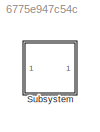
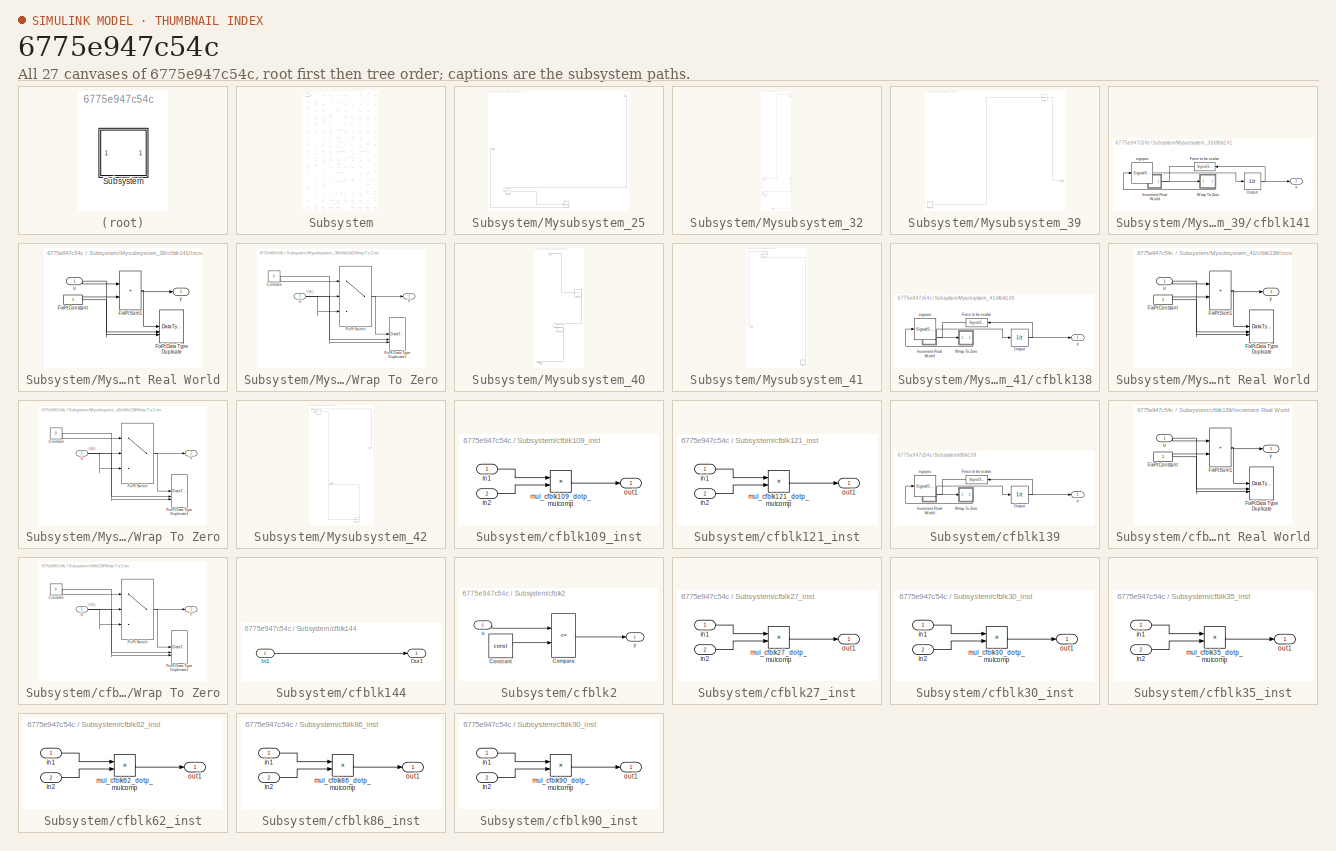
[diagram: thumbnail index - all 27 canvases of the model, root first then tree order]
MODEL slx_6775e947c54c
KIND model
CONFIG AbsTol = auto
CONFIG EnableMultiTasking = off
CONFIG FixedStep = auto
CONFIG MaxStep = auto
CONFIG MinStep = auto
CONFIG RelTol = 1e-3
CONFIG SampleTimeConstraint = Unconstrained
CONFIG SolverName = VariableStepAuto
CONFIG StartTime = 0.0
CONFIG StopTime = 10.0
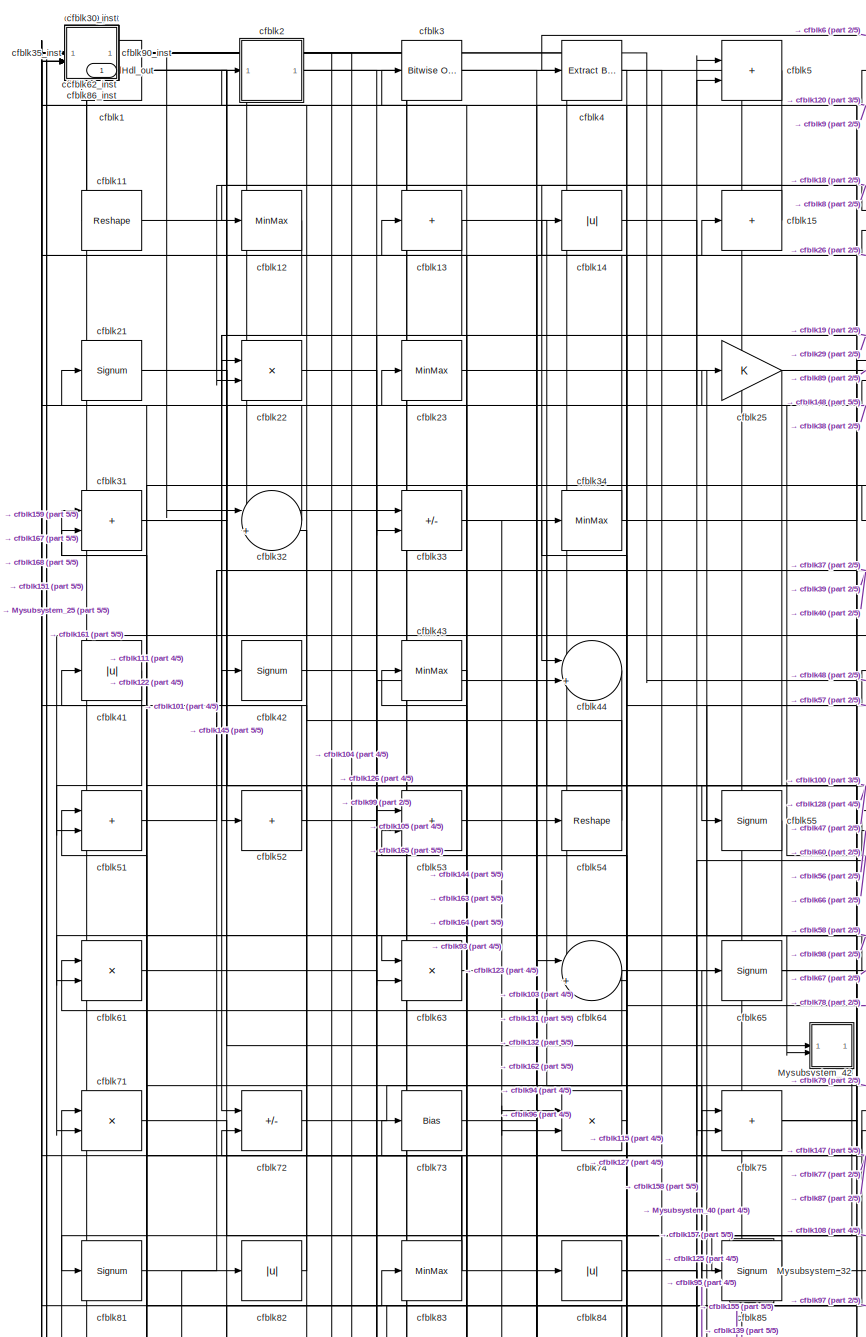
[diagram: Subsystem - part 1/5, top left region]
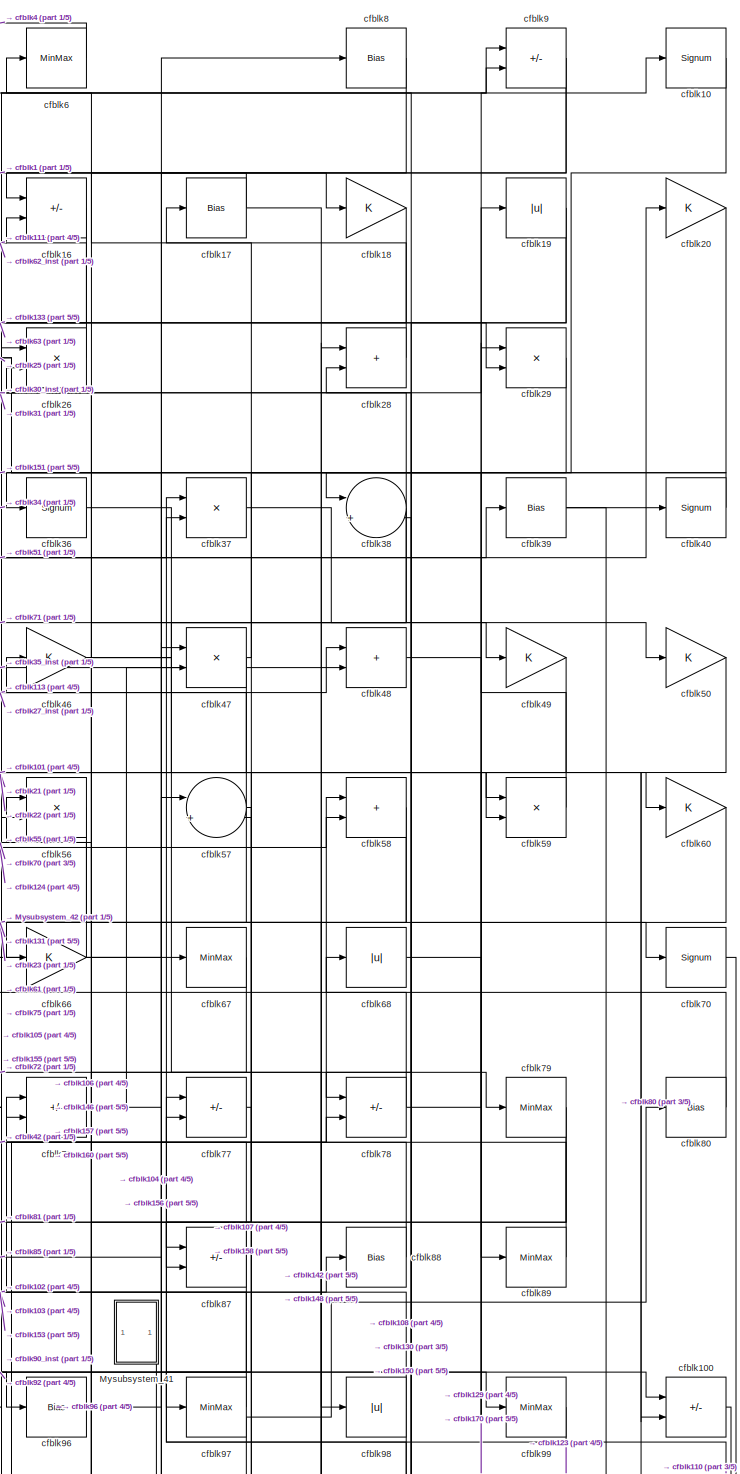
[diagram: Subsystem - part 2/5, top right region]
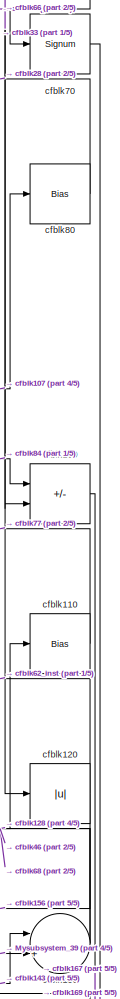
[diagram: Subsystem - part 3/5, middle right region]
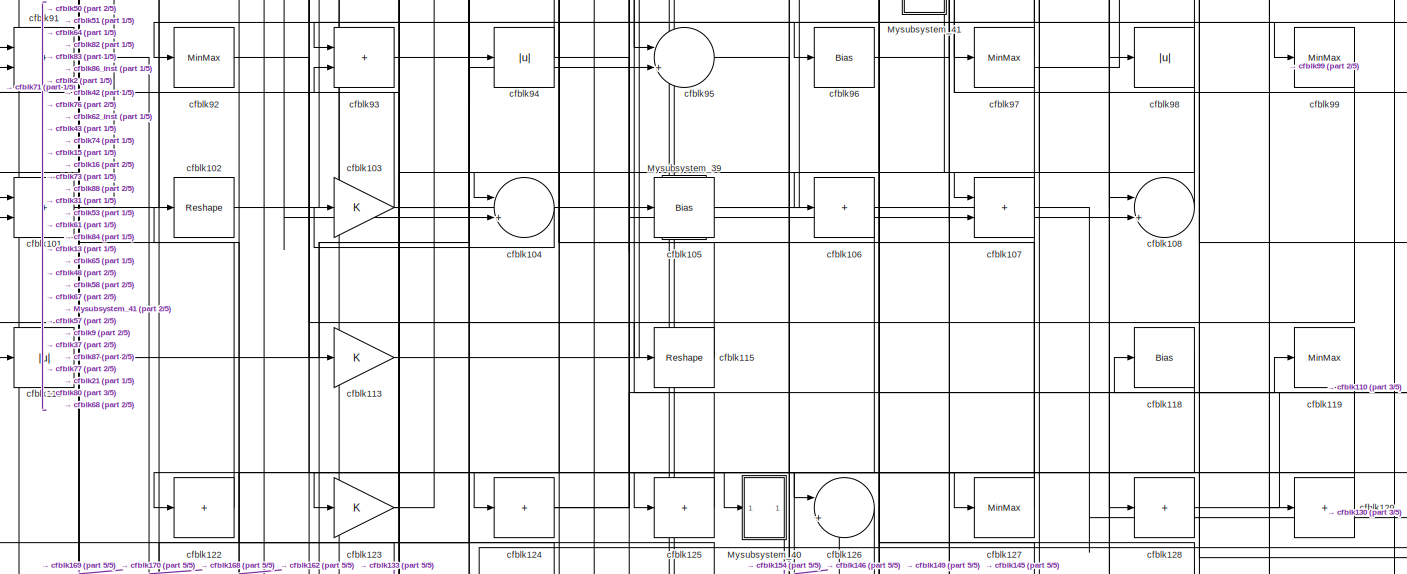
[diagram: Subsystem - part 4/5, full width, middle band]
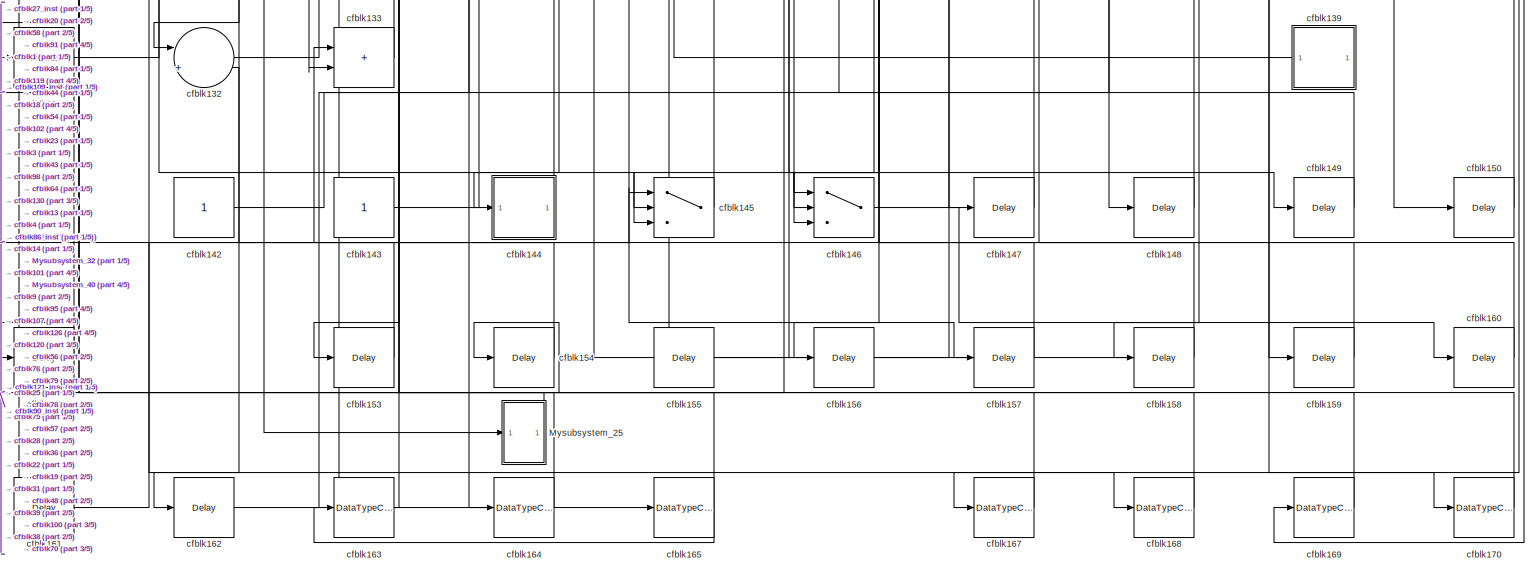
[diagram: Subsystem - part 5/5, full width, bottom band]
BLOCK [SubSystem] Subsystem
BLOCK [Outport] Subsystem/Hdl_out
  OutDataTypeStr = uint8
  SampleTime = 1
BLOCK [SubSystem] Subsystem/Mysubsystem_25
BLOCK [Inport] Subsystem/Mysubsystem_25/In1
  OutDataTypeStr = uint8
  PortDimensions = 1
  SampleTime = 1
BLOCK [Outport] Subsystem/Mysubsystem_25/Out1
  SampleTime = 1
BLOCK [Delay] Subsystem/Mysubsystem_25/cfblk152
  InputPortMap = u0
  SampleTime = 1
BLOCK [DataTypeConversion] Subsystem/Mysubsystem_25/cfblk166
  OutDataTypeStr = uint8
  RndMeth = Floor
  SaturateOnIntegerOverflow = off
BLOCK [SubSystem] Subsystem/Mysubsystem_32
BLOCK [Inport] Subsystem/Mysubsystem_32/In1
  OutDataTypeStr = uint8
  PortDimensions = 1
  SampleTime = 1
BLOCK [Outport] Subsystem/Mysubsystem_32/Out1
  SampleTime = 1
BLOCK [Abs] Subsystem/Mysubsystem_32/cfblk114
  SaturateOnIntegerOverflow = off
BLOCK [Sum] Subsystem/Mysubsystem_32/cfblk134
  IconShape = rectangular
  Inputs = +
BLOCK [Abs] Subsystem/Mysubsystem_32/cfblk7
  SaturateOnIntegerOverflow = off
BLOCK [SubSystem] Subsystem/Mysubsystem_39
BLOCK [Outport] Subsystem/Mysubsystem_39/Out1
  SampleTime = 1
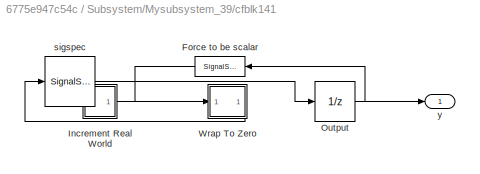
BLOCK [SubSystem] Subsystem/Mysubsystem_39/cfblk141
BLOCK [SignalSpecification] Subsystem/Mysubsystem_39/cfblk141/Force to be scalar
  Dimensions = 1
  DisableCoverage = on
BLOCK [SubSystem] Subsystem/Mysubsystem_39/cfblk141/Increment Real World
BLOCK [Constant] Subsystem/Mysubsystem_39/cfblk141/Increment Real World/FixPt Constant
  DisableCoverage = on
  OutDataTypeStr = Inherit: Inherit via back propagation
  SampleTime = -1
BLOCK [DataTypeDuplicate] Subsystem/Mysubsystem_39/cfblk141/Increment Real World/FixPt Data Type Duplicate
  DisableCoverage = on
  NumInputPorts = 3
BLOCK [Sum] Subsystem/Mysubsystem_39/cfblk141/Increment Real World/FixPt Sum1
  IconShape = rectangular
  InputSameDT = on
  LockScale = on
  OutDataTypeStr = Inherit: Inherit via back propagation
BLOCK [Inport] Subsystem/Mysubsystem_39/cfblk141/Increment Real World/u
  OutDataTypeStr = uint8
  SampleTime = 1
BLOCK [Outport] Subsystem/Mysubsystem_39/cfblk141/Increment Real World/y
  SampleTime = 1
BLOCK [UnitDelay] Subsystem/Mysubsystem_39/cfblk141/Output
  HasFrameUpgradeWarning = on
  InitialCondition = 0.0
  SampleTime = tsamp
BLOCK [SubSystem] Subsystem/Mysubsystem_39/cfblk141/Wrap To Zero
BLOCK [Constant] Subsystem/Mysubsystem_39/cfblk141/Wrap To Zero/Constant
  DisableCoverage = on
  OutDataTypeStr = Inherit: Inherit via back propagation
  SampleTime = -1
  Value = 0
BLOCK [DataTypeDuplicate] Subsystem/Mysubsystem_39/cfblk141/Wrap To Zero/FixPt Data Type Duplicate1
  DisableCoverage = on
  NumInputPorts = 3
BLOCK [Switch] Subsystem/Mysubsystem_39/cfblk141/Wrap To Zero/FixPt Switch
  Criteria = u2 > Threshold
  InputSameDT = off
  OutDataTypeStr = Inherit: Inherit via back propagation
  SaturateOnIntegerOverflow = off
  Threshold = Threshold
  ZeroCross = off
BLOCK [Inport] Subsystem/Mysubsystem_39/cfblk141/Wrap To Zero/U
  OutDataTypeStr = uint8
  SampleTime = 1
BLOCK [Outport] Subsystem/Mysubsystem_39/cfblk141/Wrap To Zero/Y
  SampleTime = 1
BLOCK [SignalSpecification] Subsystem/Mysubsystem_39/cfblk141/sigspec
  Dimensions = 1
  OutDataTypeStr = uint8
BLOCK [Outport] Subsystem/Mysubsystem_39/cfblk141/y
  SampleTime = 1
BLOCK [MinMax] Subsystem/Mysubsystem_39/cfblk69
BLOCK [SubSystem] Subsystem/Mysubsystem_40
BLOCK [Inport] Subsystem/Mysubsystem_40/In1
  OutDataTypeStr = uint8
  PortDimensions = 1
  SampleTime = 1
BLOCK [Outport] Subsystem/Mysubsystem_40/Out1
  SampleTime = 1
BLOCK [Abs] Subsystem/Mysubsystem_40/cfblk116
  SaturateOnIntegerOverflow = off
BLOCK [Signum] Subsystem/Mysubsystem_40/cfblk135
BLOCK [SubSystem] Subsystem/Mysubsystem_41
BLOCK [Outport] Subsystem/Mysubsystem_41/Out1
  SampleTime = 1
BLOCK [SubSystem] Subsystem/Mysubsystem_41/cfblk138
BLOCK [SignalSpecification] Subsystem/Mysubsystem_41/cfblk138/Force to be scalar
  Dimensions = 1
  DisableCoverage = on
BLOCK [SubSystem] Subsystem/Mysubsystem_41/cfblk138/Increment Real World
BLOCK [Constant] Subsystem/Mysubsystem_41/cfblk138/Increment Real World/FixPt Constant
  DisableCoverage = on
  OutDataTypeStr = Inherit: Inherit via back propagation
  SampleTime = -1
BLOCK [DataTypeDuplicate] Subsystem/Mysubsystem_41/cfblk138/Increment Real World/FixPt Data Type Duplicate
  DisableCoverage = on
  NumInputPorts = 3
BLOCK [Sum] Subsystem/Mysubsystem_41/cfblk138/Increment Real World/FixPt Sum1
  IconShape = rectangular
  InputSameDT = on
  LockScale = on
  OutDataTypeStr = Inherit: Inherit via back propagation
BLOCK [Inport] Subsystem/Mysubsystem_41/cfblk138/Increment Real World/u
  OutDataTypeStr = uint16
  SampleTime = 1
BLOCK [Outport] Subsystem/Mysubsystem_41/cfblk138/Increment Real World/y
  SampleTime = 1
BLOCK [UnitDelay] Subsystem/Mysubsystem_41/cfblk138/Output
  HasFrameUpgradeWarning = on
  InitialCondition = 0.0
  SampleTime = tsamp
BLOCK [SubSystem] Subsystem/Mysubsystem_41/cfblk138/Wrap To Zero
BLOCK [Constant] Subsystem/Mysubsystem_41/cfblk138/Wrap To Zero/Constant
  DisableCoverage = on
  OutDataTypeStr = Inherit: Inherit via back propagation
  SampleTime = -1
  Value = 0
BLOCK [DataTypeDuplicate] Subsystem/Mysubsystem_41/cfblk138/Wrap To Zero/FixPt Data Type Duplicate1
  DisableCoverage = on
  NumInputPorts = 3
BLOCK [Switch] Subsystem/Mysubsystem_41/cfblk138/Wrap To Zero/FixPt Switch
  Criteria = u2 > Threshold
  InputSameDT = off
  OutDataTypeStr = Inherit: Inherit via back propagation
  SaturateOnIntegerOverflow = off
  Threshold = Threshold
  ZeroCross = off
BLOCK [Inport] Subsystem/Mysubsystem_41/cfblk138/Wrap To Zero/U
  OutDataTypeStr = uint16
  SampleTime = 1
BLOCK [Outport] Subsystem/Mysubsystem_41/cfblk138/Wrap To Zero/Y
  SampleTime = 1
BLOCK [SignalSpecification] Subsystem/Mysubsystem_41/cfblk138/sigspec
  Dimensions = 1
  OutDataTypeStr = uint16
BLOCK [Outport] Subsystem/Mysubsystem_41/cfblk138/y
  SampleTime = 1
BLOCK [Signum] Subsystem/Mysubsystem_41/cfblk45
BLOCK [SubSystem] Subsystem/Mysubsystem_42
BLOCK [Inport] Subsystem/Mysubsystem_42/In1
  OutDataTypeStr = uint8
  PortDimensions = 1
  SampleTime = 1
BLOCK [Inport] Subsystem/Mysubsystem_42/In2
  OutDataTypeStr = uint8
  Port = 2
  PortDimensions = 1
  SampleTime = 1
BLOCK [Outport] Subsystem/Mysubsystem_42/Out1
  SampleTime = 1
BLOCK [MinMax] Subsystem/Mysubsystem_42/cfblk117
BLOCK [Sum] Subsystem/Mysubsystem_42/cfblk24
  IconShape = rectangular
  Inputs = +-
BLOCK [Reference] Subsystem/cfblk1  REF=hdlsllib/Logic and Bit
Operations/Interval Test
  SourceBlock = hdlsllib/Logic and Bit\nOperations/Interval Test
  SourceType = Interval Test
BLOCK [Signum] Subsystem/cfblk10
BLOCK [Sum] Subsystem/cfblk100
  IconShape = rectangular
  Inputs = +-
  OutDataTypeStr = uint8
BLOCK [Sum] Subsystem/cfblk101
  IconShape = rectangular
  OutDataTypeStr = uint8
BLOCK [Reshape] Subsystem/cfblk102
BLOCK [Gain] Subsystem/cfblk103
  OutDataTypeStr = uint8
BLOCK [Sum] Subsystem/cfblk104
  Inputs = |++
  OutDataTypeStr = uint8
BLOCK [Bias] Subsystem/cfblk105
  Bias = 0.0
  SaturateOnIntegerOverflow = off
BLOCK [Sum] Subsystem/cfblk106
  IconShape = rectangular
  Inputs = +
  OutDataTypeStr = uint8
BLOCK [Sum] Subsystem/cfblk107
  IconShape = rectangular
  OutDataTypeStr = uint8
BLOCK [Sum] Subsystem/cfblk108
  Inputs = |++
  OutDataTypeStr = uint8
BLOCK [SubSystem] Subsystem/cfblk109_inst
BLOCK [Inport] Subsystem/cfblk109_inst/in1
  OutDataTypeStr = uint8
  SampleTime = 1
BLOCK [Inport] Subsystem/cfblk109_inst/in2
  OutDataTypeStr = uint8
  Port = 2
  SampleTime = 1
BLOCK [Product] Subsystem/cfblk109_inst/mul_cfblk109_dotp_mulcomp
  Inputs = **
  OutDataTypeStr = uint8
  SampleTime = 1
BLOCK [Outport] Subsystem/cfblk109_inst/out1
  OutDataTypeStr = uint8
  SampleTime = 1
BLOCK [Reshape] Subsystem/cfblk11
BLOCK [Bias] Subsystem/cfblk110
  Bias = 0.0
  SaturateOnIntegerOverflow = off
BLOCK [Abs] Subsystem/cfblk111
  OutDataTypeStr = uint8
  SaturateOnIntegerOverflow = off
BLOCK [Gain] Subsystem/cfblk113
  OutDataTypeStr = uint8
BLOCK [Reshape] Subsystem/cfblk115
BLOCK [Bias] Subsystem/cfblk118
  Bias = 0.0
  SaturateOnIntegerOverflow = off
BLOCK [MinMax] Subsystem/cfblk119
  OutDataTypeStr = uint8
BLOCK [MinMax] Subsystem/cfblk12
  OutDataTypeStr = uint8
BLOCK [Abs] Subsystem/cfblk120
  OutDataTypeStr = uint8
  SaturateOnIntegerOverflow = off
BLOCK [SubSystem] Subsystem/cfblk121_inst
BLOCK [Inport] Subsystem/cfblk121_inst/in1
  OutDataTypeStr = uint8
  SampleTime = 1
BLOCK [Inport] Subsystem/cfblk121_inst/in2
  OutDataTypeStr = uint8
  Port = 2
  SampleTime = 1
BLOCK [Product] Subsystem/cfblk121_inst/mul_cfblk121_dotp_mulcomp
  Inputs = **
  OutDataTypeStr = uint8
  SampleTime = 1
BLOCK [Outport] Subsystem/cfblk121_inst/out1
  OutDataTypeStr = uint8
  SampleTime = 1
BLOCK [Sum] Subsystem/cfblk122
  IconShape = rectangular
  Inputs = +
  OutDataTypeStr = uint8
BLOCK [Gain] Subsystem/cfblk123
  OutDataTypeStr = uint8
BLOCK [Sum] Subsystem/cfblk124
  IconShape = rectangular
  Inputs = +
  OutDataTypeStr = uint8
BLOCK [Sum] Subsystem/cfblk125
  IconShape = rectangular
  Inputs = +
  OutDataTypeStr = uint8
BLOCK [Sum] Subsystem/cfblk126
  Inputs = |++
  OutDataTypeStr = uint8
BLOCK [MinMax] Subsystem/cfblk127
  OutDataTypeStr = uint8
BLOCK [Sum] Subsystem/cfblk128
  IconShape = rectangular
  Inputs = +
  OutDataTypeStr = uint8
BLOCK [Sum] Subsystem/cfblk129
  IconShape = rectangular
  Inputs = +
  OutDataTypeStr = uint8
BLOCK [Sum] Subsystem/cfblk13
  IconShape = rectangular
  Inputs = +
  OutDataTypeStr = uint8
BLOCK [Sum] Subsystem/cfblk130
  Inputs = |++
  OutDataTypeStr = uint8
BLOCK [MinMax] Subsystem/cfblk131
  OutDataTypeStr = uint8
BLOCK [Sum] Subsystem/cfblk132
  Inputs = |++
  OutDataTypeStr = uint8
BLOCK [Sum] Subsystem/cfblk133
  IconShape = rectangular
  OutDataTypeStr = uint8
BLOCK [SubSystem] Subsystem/cfblk139
BLOCK [SignalSpecification] Subsystem/cfblk139/Force to be scalar
  Dimensions = 1
  DisableCoverage = on
BLOCK [SubSystem] Subsystem/cfblk139/Increment Real World
BLOCK [Constant] Subsystem/cfblk139/Increment Real World/FixPt Constant
  DisableCoverage = on
  OutDataTypeStr = Inherit: Inherit via back propagation
  SampleTime = -1
BLOCK [DataTypeDuplicate] Subsystem/cfblk139/Increment Real World/FixPt Data Type Duplicate
  DisableCoverage = on
  NumInputPorts = 3
BLOCK [Sum] Subsystem/cfblk139/Increment Real World/FixPt Sum1
  IconShape = rectangular
  InputSameDT = on
  LockScale = on
  OutDataTypeStr = Inherit: Inherit via back propagation
BLOCK [Inport] Subsystem/cfblk139/Increment Real World/u
  OutDataTypeStr = uint16
  SampleTime = 1
BLOCK [Outport] Subsystem/cfblk139/Increment Real World/y
  SampleTime = 1
BLOCK [UnitDelay] Subsystem/cfblk139/Output
  HasFrameUpgradeWarning = on
  InitialCondition = 0.0
  SampleTime = tsamp
BLOCK [SubSystem] Subsystem/cfblk139/Wrap To Zero
BLOCK [Constant] Subsystem/cfblk139/Wrap To Zero/Constant
  DisableCoverage = on
  OutDataTypeStr = Inherit: Inherit via back propagation
  SampleTime = -1
  Value = 0
BLOCK [DataTypeDuplicate] Subsystem/cfblk139/Wrap To Zero/FixPt Data Type Duplicate1
  DisableCoverage = on
  NumInputPorts = 3
BLOCK [Switch] Subsystem/cfblk139/Wrap To Zero/FixPt Switch
  Criteria = u2 > Threshold
  InputSameDT = off
  OutDataTypeStr = Inherit: Inherit via back propagation
  SaturateOnIntegerOverflow = off
  Threshold = Threshold
  ZeroCross = off
BLOCK [Inport] Subsystem/cfblk139/Wrap To Zero/U
  OutDataTypeStr = uint16
  SampleTime = 1
BLOCK [Outport] Subsystem/cfblk139/Wrap To Zero/Y
  SampleTime = 1
BLOCK [SignalSpecification] Subsystem/cfblk139/sigspec
  Dimensions = 1
  OutDataTypeStr = uint16
BLOCK [Outport] Subsystem/cfblk139/y
  SampleTime = 1
BLOCK [Abs] Subsystem/cfblk14
  OutDataTypeStr = uint8
  SaturateOnIntegerOverflow = off
BLOCK [Constant] Subsystem/cfblk142
  OutDataTypeStr = uint8
  SampleTime = -1
BLOCK [Constant] Subsystem/cfblk143
  OutDataTypeStr = uint8
  SampleTime = -1
BLOCK [SubSystem] Subsystem/cfblk144
BLOCK [Inport] Subsystem/cfblk144/In1
  OutDataTypeStr = fixdt(0, 4, -4)
  PortDimensions = 1
  SampleTime = 1
BLOCK [Outport] Subsystem/cfblk144/Out1
  SampleTime = 1
BLOCK [Switch] Subsystem/cfblk145
  InputSameDT = off
  OutDataTypeStr = uint8
  SaturateOnIntegerOverflow = off
BLOCK [Switch] Subsystem/cfblk146
  InputSameDT = off
  OutDataTypeStr = uint8
  SaturateOnIntegerOverflow = off
BLOCK [Delay] Subsystem/cfblk147
  InputPortMap = u0
  SampleTime = 1
BLOCK [Delay] Subsystem/cfblk148
  InputPortMap = u0
  SampleTime = 1
BLOCK [Delay] Subsystem/cfblk149
  InputPortMap = u0
  SampleTime = 1
BLOCK [Sum] Subsystem/cfblk15
  IconShape = rectangular
  Inputs = +
  OutDataTypeStr = uint8
BLOCK [Delay] Subsystem/cfblk150
  InputPortMap = u0
  SampleTime = 1
BLOCK [Delay] Subsystem/cfblk151
  InputPortMap = u0
  SampleTime = 1
BLOCK [Delay] Subsystem/cfblk153
  InputPortMap = u0
  SampleTime = 1
BLOCK [Delay] Subsystem/cfblk154
  InputPortMap = u0
  SampleTime = 1
BLOCK [Delay] Subsystem/cfblk155
  InputPortMap = u0
  SampleTime = 1
BLOCK [Delay] Subsystem/cfblk156
  InputPortMap = u0
  SampleTime = 1
BLOCK [Delay] Subsystem/cfblk157
  InputPortMap = u0
  SampleTime = 1
BLOCK [Delay] Subsystem/cfblk158
  InputPortMap = u0
  SampleTime = 1
BLOCK [Delay] Subsystem/cfblk159
  InputPortMap = u0
  SampleTime = 1
BLOCK [Sum] Subsystem/cfblk16
  IconShape = rectangular
  Inputs = +-
  OutDataTypeStr = uint8
BLOCK [Delay] Subsystem/cfblk160
  InputPortMap = u0
  SampleTime = 1
BLOCK [Delay] Subsystem/cfblk161
  InputPortMap = u0
  SampleTime = 1
BLOCK [Delay] Subsystem/cfblk162
  InputPortMap = u0
  SampleTime = 1
BLOCK [DataTypeConversion] Subsystem/cfblk163
  OutDataTypeStr = uint8
  RndMeth = Floor
  SaturateOnIntegerOverflow = off
BLOCK [DataTypeConversion] Subsystem/cfblk164
  OutDataTypeStr = uint8
  RndMeth = Floor
  SaturateOnIntegerOverflow = off
BLOCK [DataTypeConversion] Subsystem/cfblk165
  OutDataTypeStr = uint8
  RndMeth = Floor
  SaturateOnIntegerOverflow = off
BLOCK [DataTypeConversion] Subsystem/cfblk167
  OutDataTypeStr = uint8
  RndMeth = Floor
  SaturateOnIntegerOverflow = off
BLOCK [DataTypeConversion] Subsystem/cfblk168
  OutDataTypeStr = uint8
  RndMeth = Floor
  SaturateOnIntegerOverflow = off
BLOCK [DataTypeConversion] Subsystem/cfblk169
  OutDataTypeStr = uint8
  RndMeth = Floor
  SaturateOnIntegerOverflow = off
BLOCK [Bias] Subsystem/cfblk17
  Bias = 0.0
  SaturateOnIntegerOverflow = off
BLOCK [DataTypeConversion] Subsystem/cfblk170
  OutDataTypeStr = uint8
  RndMeth = Floor
  SaturateOnIntegerOverflow = off
BLOCK [Gain] Subsystem/cfblk18
  OutDataTypeStr = uint8
BLOCK [Abs] Subsystem/cfblk19
  OutDataTypeStr = uint8
  SaturateOnIntegerOverflow = off
BLOCK [SubSystem] Subsystem/cfblk2
BLOCK [RelationalOperator] Subsystem/cfblk2/Compare
  Operator = <=
  OutDataTypeStr = fixdt(0, 8)
BLOCK [Constant] Subsystem/cfblk2/Constant
  DisableCoverage = on
  OutDataTypeStr = Inherit: Inherit via back propagation
  SampleTime = -1
  Value = const
BLOCK [Inport] Subsystem/cfblk2/u
  OutDataTypeStr = uint8
  SampleTime = 1
BLOCK [Outport] Subsystem/cfblk2/y
  SampleTime = 1
BLOCK [Gain] Subsystem/cfblk20
  OutDataTypeStr = uint8
BLOCK [Signum] Subsystem/cfblk21
BLOCK [Product] Subsystem/cfblk22
  Inputs = */
  OutDataTypeStr = uint8
  RndMeth = Zero
  SaturateOnIntegerOverflow = on
BLOCK [MinMax] Subsystem/cfblk23
  OutDataTypeStr = uint8
BLOCK [Gain] Subsystem/cfblk25
  OutDataTypeStr = uint8
BLOCK [Product] Subsystem/cfblk26
  Inputs = */
  OutDataTypeStr = uint8
  RndMeth = Zero
  SaturateOnIntegerOverflow = on
BLOCK [SubSystem] Subsystem/cfblk27_inst
BLOCK [Inport] Subsystem/cfblk27_inst/in1
  OutDataTypeStr = uint8
  SampleTime = 1
BLOCK [Inport] Subsystem/cfblk27_inst/in2
  OutDataTypeStr = uint8
  Port = 2
  SampleTime = 1
BLOCK [Product] Subsystem/cfblk27_inst/mul_cfblk27_dotp_mulcomp
  Inputs = **
  OutDataTypeStr = uint8
  SampleTime = 1
BLOCK [Outport] Subsystem/cfblk27_inst/out1
  OutDataTypeStr = uint8
  SampleTime = 1
BLOCK [Sum] Subsystem/cfblk28
  IconShape = rectangular
  OutDataTypeStr = uint8
BLOCK [Product] Subsystem/cfblk29
  Inputs = */
  OutDataTypeStr = uint8
  RndMeth = Zero
  SaturateOnIntegerOverflow = on
BLOCK [Reference] Subsystem/cfblk3  REF=simulink/Logic and Bit
Operations/Bitwise
Operator
  LibrarySourceBlock = hdlsllib/Logic and Bit\nOperations/Bitwise\nOperator
  SourceBlock = simulink/Logic and Bit\nOperations/Bitwise\nOperator
  SourceType = Bitwise Operator
BLOCK [SubSystem] Subsystem/cfblk30_inst
BLOCK [Inport] Subsystem/cfblk30_inst/in1
  OutDataTypeStr = uint8
  SampleTime = 1
BLOCK [Inport] Subsystem/cfblk30_inst/in2
  OutDataTypeStr = uint8
  Port = 2
  SampleTime = 1
BLOCK [Product] Subsystem/cfblk30_inst/mul_cfblk30_dotp_mulcomp
  Inputs = **
  OutDataTypeStr = uint8
  SampleTime = 1
BLOCK [Outport] Subsystem/cfblk30_inst/out1
  OutDataTypeStr = uint8
  SampleTime = 1
BLOCK [Sum] Subsystem/cfblk31
  IconShape = rectangular
  OutDataTypeStr = uint8
BLOCK [Sum] Subsystem/cfblk32
  Inputs = |++
  OutDataTypeStr = uint8
BLOCK [Sum] Subsystem/cfblk33
  IconShape = rectangular
  Inputs = +-
  OutDataTypeStr = uint8
BLOCK [MinMax] Subsystem/cfblk34
  OutDataTypeStr = uint8
BLOCK [SubSystem] Subsystem/cfblk35_inst
BLOCK [Inport] Subsystem/cfblk35_inst/in1
  OutDataTypeStr = uint8
  SampleTime = 1
BLOCK [Inport] Subsystem/cfblk35_inst/in2
  OutDataTypeStr = uint8
  Port = 2
  SampleTime = 1
BLOCK [Product] Subsystem/cfblk35_inst/mul_cfblk35_dotp_mulcomp
  Inputs = **
  OutDataTypeStr = uint8
  SampleTime = 1
BLOCK [Outport] Subsystem/cfblk35_inst/out1
  OutDataTypeStr = uint8
  SampleTime = 1
BLOCK [Signum] Subsystem/cfblk36
BLOCK [Product] Subsystem/cfblk37
  Inputs = */
  OutDataTypeStr = uint8
  RndMeth = Zero
  SaturateOnIntegerOverflow = on
BLOCK [Sum] Subsystem/cfblk38
  Inputs = |++
  OutDataTypeStr = uint8
BLOCK [Bias] Subsystem/cfblk39
  Bias = 0.0
  SaturateOnIntegerOverflow = off
BLOCK [Reference] Subsystem/cfblk4  REF=simulink/Logic and Bit
Operations/Extract Bits
  LibrarySourceBlock = hdlsllib/Logic and Bit\nOperations/Extract Bits
  SourceBlock = simulink/Logic and Bit\nOperations/Extract Bits
  SourceType = Extract Bits
BLOCK [Signum] Subsystem/cfblk40
BLOCK [Abs] Subsystem/cfblk41
  OutDataTypeStr = uint8
  SaturateOnIntegerOverflow = off
BLOCK [Signum] Subsystem/cfblk42
BLOCK [MinMax] Subsystem/cfblk43
  OutDataTypeStr = uint8
BLOCK [Sum] Subsystem/cfblk44
  Inputs = |++
  OutDataTypeStr = uint8
BLOCK [Gain] Subsystem/cfblk46
  OutDataTypeStr = uint8
BLOCK [Product] Subsystem/cfblk47
  Inputs = */
  OutDataTypeStr = uint8
  RndMeth = Zero
  SaturateOnIntegerOverflow = on
BLOCK [Sum] Subsystem/cfblk48
  IconShape = rectangular
  OutDataTypeStr = uint8
BLOCK [Gain] Subsystem/cfblk49
  OutDataTypeStr = uint8
BLOCK [Sum] Subsystem/cfblk5
  IconShape = rectangular
  OutDataTypeStr = uint8
BLOCK [Gain] Subsystem/cfblk50
  OutDataTypeStr = uint8
BLOCK [Sum] Subsystem/cfblk51
  IconShape = rectangular
  OutDataTypeStr = uint8
BLOCK [Sum] Subsystem/cfblk52
  IconShape = rectangular
  Inputs = +
  OutDataTypeStr = uint8
BLOCK [Sum] Subsystem/cfblk53
  IconShape = rectangular
  OutDataTypeStr = uint8
BLOCK [Reshape] Subsystem/cfblk54
BLOCK [Signum] Subsystem/cfblk55
BLOCK [Product] Subsystem/cfblk56
  Inputs = */
  OutDataTypeStr = uint8
  RndMeth = Zero
  SaturateOnIntegerOverflow = on
BLOCK [Sum] Subsystem/cfblk57
  Inputs = |++
  OutDataTypeStr = uint8
BLOCK [Sum] Subsystem/cfblk58
  IconShape = rectangular
  OutDataTypeStr = uint8
BLOCK [Product] Subsystem/cfblk59
  Inputs = */
  OutDataTypeStr = uint8
  RndMeth = Zero
  SaturateOnIntegerOverflow = on
BLOCK [MinMax] Subsystem/cfblk6
  OutDataTypeStr = uint8
BLOCK [Gain] Subsystem/cfblk60
  OutDataTypeStr = uint8
BLOCK [Product] Subsystem/cfblk61
  Inputs = */
  OutDataTypeStr = uint8
  RndMeth = Zero
  SaturateOnIntegerOverflow = on
BLOCK [SubSystem] Subsystem/cfblk62_inst
BLOCK [Inport] Subsystem/cfblk62_inst/in1
  OutDataTypeStr = uint8
  SampleTime = 1
BLOCK [Inport] Subsystem/cfblk62_inst/in2
  OutDataTypeStr = uint8
  Port = 2
  SampleTime = 1
BLOCK [Product] Subsystem/cfblk62_inst/mul_cfblk62_dotp_mulcomp
  Inputs = **
  OutDataTypeStr = uint8
  SampleTime = 1
BLOCK [Outport] Subsystem/cfblk62_inst/out1
  OutDataTypeStr = uint8
  SampleTime = 1
BLOCK [Product] Subsystem/cfblk63
  Inputs = */
  OutDataTypeStr = uint8
  RndMeth = Zero
  SaturateOnIntegerOverflow = on
BLOCK [Sum] Subsystem/cfblk64
  Inputs = |++
  OutDataTypeStr = uint8
BLOCK [Signum] Subsystem/cfblk65
BLOCK [Gain] Subsystem/cfblk66
  OutDataTypeStr = uint8
BLOCK [MinMax] Subsystem/cfblk67
  OutDataTypeStr = uint8
BLOCK [Abs] Subsystem/cfblk68
  OutDataTypeStr = uint8
  SaturateOnIntegerOverflow = off
BLOCK [Signum] Subsystem/cfblk70
BLOCK [Product] Subsystem/cfblk71
  Inputs = */
  OutDataTypeStr = uint8
  RndMeth = Zero
  SaturateOnIntegerOverflow = on
BLOCK [Sum] Subsystem/cfblk72
  IconShape = rectangular
  Inputs = +-
  OutDataTypeStr = uint8
BLOCK [Bias] Subsystem/cfblk73
  Bias = 0.0
  SaturateOnIntegerOverflow = off
BLOCK [Product] Subsystem/cfblk74
  Inputs = */
  OutDataTypeStr = uint8
  RndMeth = Zero
  SaturateOnIntegerOverflow = on
BLOCK [Sum] Subsystem/cfblk75
  IconShape = rectangular
  OutDataTypeStr = uint8
BLOCK [Sum] Subsystem/cfblk76
  IconShape = rectangular
  Inputs = +-
  OutDataTypeStr = uint8
BLOCK [Sum] Subsystem/cfblk77
  IconShape = rectangular
  Inputs = +-
  OutDataTypeStr = uint8
BLOCK [Sum] Subsystem/cfblk78
  IconShape = rectangular
  Inputs = +-
  OutDataTypeStr = uint8
BLOCK [MinMax] Subsystem/cfblk79
  OutDataTypeStr = uint8
BLOCK [Bias] Subsystem/cfblk8
  Bias = 0.0
  SaturateOnIntegerOverflow = off
BLOCK [Bias] Subsystem/cfblk80
  Bias = 0.0
  SaturateOnIntegerOverflow = off
BLOCK [Signum] Subsystem/cfblk81
BLOCK [Abs] Subsystem/cfblk82
  OutDataTypeStr = uint8
  SaturateOnIntegerOverflow = off
BLOCK [MinMax] Subsystem/cfblk83
  OutDataTypeStr = uint8
BLOCK [Abs] Subsystem/cfblk84
  OutDataTypeStr = uint8
  SaturateOnIntegerOverflow = off
BLOCK [Signum] Subsystem/cfblk85
BLOCK [SubSystem] Subsystem/cfblk86_inst
BLOCK [Inport] Subsystem/cfblk86_inst/in1
  OutDataTypeStr = uint8
  SampleTime = 1
BLOCK [Inport] Subsystem/cfblk86_inst/in2
  OutDataTypeStr = uint8
  Port = 2
  SampleTime = 1
BLOCK [Product] Subsystem/cfblk86_inst/mul_cfblk86_dotp_mulcomp
  Inputs = **
  OutDataTypeStr = uint8
  SampleTime = 1
BLOCK [Outport] Subsystem/cfblk86_inst/out1
  OutDataTypeStr = uint8
  SampleTime = 1
BLOCK [Sum] Subsystem/cfblk87
  IconShape = rectangular
  Inputs = +-
  OutDataTypeStr = uint8
BLOCK [Bias] Subsystem/cfblk88
  Bias = 0.0
  SaturateOnIntegerOverflow = off
BLOCK [MinMax] Subsystem/cfblk89
  OutDataTypeStr = uint8
BLOCK [Sum] Subsystem/cfblk9
  IconShape = rectangular
  Inputs = +-
  OutDataTypeStr = uint8
BLOCK [SubSystem] Subsystem/cfblk90_inst
BLOCK [Inport] Subsystem/cfblk90_inst/in1
  OutDataTypeStr = uint8
  SampleTime = 1
BLOCK [Inport] Subsystem/cfblk90_inst/in2
  OutDataTypeStr = uint8
  Port = 2
  SampleTime = 1
BLOCK [Product] Subsystem/cfblk90_inst/mul_cfblk90_dotp_mulcomp
  Inputs = **
  OutDataTypeStr = uint8
  SampleTime = 1
BLOCK [Outport] Subsystem/cfblk90_inst/out1
  OutDataTypeStr = uint8
  SampleTime = 1
BLOCK [Sum] Subsystem/cfblk91
  IconShape = rectangular
  OutDataTypeStr = uint8
BLOCK [MinMax] Subsystem/cfblk92
  OutDataTypeStr = uint8
BLOCK [Sum] Subsystem/cfblk93
  IconShape = rectangular
  OutDataTypeStr = uint8
BLOCK [Abs] Subsystem/cfblk94
  OutDataTypeStr = uint8
  SaturateOnIntegerOverflow = off
BLOCK [Sum] Subsystem/cfblk95
  Inputs = |++
  OutDataTypeStr = uint8
BLOCK [Bias] Subsystem/cfblk96
  Bias = 0.0
  SaturateOnIntegerOverflow = off
BLOCK [MinMax] Subsystem/cfblk97
  OutDataTypeStr = uint8
BLOCK [Abs] Subsystem/cfblk98
  OutDataTypeStr = uint8
  SaturateOnIntegerOverflow = off
BLOCK [MinMax] Subsystem/cfblk99
  OutDataTypeStr = uint8
ANNOTATION Subsystem/Mysubsystem_39/cfblk141/Wrap To Zero: U(k)
ANNOTATION Subsystem/Mysubsystem_41/cfblk138/Wrap To Zero: U(k)
ANNOTATION Subsystem/cfblk139/Wrap To Zero: U(k)
LINE Subsystem/Mysubsystem_25/In1:1 -> Subsystem/Mysubsystem_25/cfblk152:1
LINE Subsystem/Mysubsystem_25/cfblk152:1 -> Subsystem/Mysubsystem_25/cfblk166:1
LINE Subsystem/Mysubsystem_25/cfblk166:1 -> Subsystem/Mysubsystem_25/Out1:1
LINE Subsystem/Mysubsystem_25:1 -> Subsystem/cfblk121_inst:1
LINE Subsystem/Mysubsystem_32/In1:1 -> Subsystem/Mysubsystem_32/cfblk134:1
LINE Subsystem/Mysubsystem_32/cfblk114:1 -> Subsystem/Mysubsystem_32/cfblk7:1
LINE Subsystem/Mysubsystem_32/cfblk134:1 -> Subsystem/Mysubsystem_32/cfblk114:1
LINE Subsystem/Mysubsystem_32/cfblk7:1 -> Subsystem/Mysubsystem_32/Out1:1
LINE Subsystem/Mysubsystem_32:1 -> Subsystem/cfblk155:1
LINE Subsystem/Mysubsystem_39/cfblk141:1 -> Subsystem/Mysubsystem_39/cfblk69:1
LINE Subsystem/Mysubsystem_39/cfblk69:1 -> Subsystem/Mysubsystem_39/Out1:1
LINE Subsystem/Mysubsystem_39:1 -> Subsystem/cfblk130:2
LINE Subsystem/Mysubsystem_40/In1:1 -> Subsystem/Mysubsystem_40/cfblk116:1
LINE Subsystem/Mysubsystem_40/cfblk116:1 -> Subsystem/Mysubsystem_40/cfblk135:1
LINE Subsystem/Mysubsystem_40/cfblk135:1 -> Subsystem/Mysubsystem_40/Out1:1
LINE Subsystem/Mysubsystem_40:1 -> Subsystem/cfblk154:1
LINE Subsystem/Mysubsystem_41/cfblk138:1 -> Subsystem/Mysubsystem_41/cfblk45:1
LINE Subsystem/Mysubsystem_41/cfblk45:1 -> Subsystem/Mysubsystem_41/Out1:1
LINE Subsystem/Mysubsystem_41:1 -> Subsystem/cfblk104:1
LINE Subsystem/Mysubsystem_42/In1:1 -> Subsystem/Mysubsystem_42/cfblk24:2
LINE Subsystem/Mysubsystem_42/In2:1 -> Subsystem/Mysubsystem_42/cfblk24:1
LINE Subsystem/Mysubsystem_42/cfblk117:1 -> Subsystem/Mysubsystem_42/Out1:1
LINE Subsystem/Mysubsystem_42/cfblk24:1 -> Subsystem/Mysubsystem_42/cfblk117:1
LINE Subsystem/Mysubsystem_42:1 -> Subsystem/Mysubsystem_32:1
LINE Subsystem/cfblk100:1 -> Subsystem/cfblk167:1
NET Subsystem/cfblk101:1 -> Subsystem/cfblk82:1, Subsystem/cfblk83:1
LINE Subsystem/cfblk102:1 -> Subsystem/cfblk76:1
NET Subsystem/cfblk103:1 -> Subsystem/cfblk15:1, Subsystem/cfblk71:1, Subsystem/cfblk88:1
LINE Subsystem/cfblk104:1 -> Subsystem/cfblk103:1
LINE Subsystem/cfblk105:1 -> Subsystem/cfblk58:1
LINE Subsystem/cfblk106:1 -> Subsystem/cfblk122:1
NET Subsystem/cfblk107:1 -> Subsystem/cfblk146:3, Subsystem/cfblk80:1
LINE Subsystem/cfblk108:1 -> Subsystem/cfblk37:1
LINE Subsystem/cfblk109_inst/in1:1 -> Subsystem/cfblk109_inst/mul_cfblk109_dotp_mulcomp:1
LINE Subsystem/cfblk109_inst/in2:1 -> Subsystem/cfblk109_inst/mul_cfblk109_dotp_mulcomp:2
LINE Subsystem/cfblk109_inst/mul_cfblk109_dotp_mulcomp:1 -> Subsystem/cfblk109_inst/out1:1
LINE Subsystem/cfblk109_inst:1 -> Subsystem/cfblk33:1
LINE Subsystem/cfblk10:1 -> Subsystem/cfblk36:1
LINE Subsystem/cfblk110:1 -> Subsystem/cfblk77:1
LINE Subsystem/cfblk111:1 -> Subsystem/cfblk16:2
LINE Subsystem/cfblk113:1 -> Subsystem/cfblk48:1
LINE Subsystem/cfblk115:1 -> Subsystem/cfblk53:2
LINE Subsystem/cfblk118:1 -> Subsystem/cfblk125:1
LINE Subsystem/cfblk119:1 -> Subsystem/cfblk162:1
LINE Subsystem/cfblk11:1 -> Subsystem/cfblk33:2
NET Subsystem/cfblk120:1 -> Subsystem/cfblk156:1, Subsystem/cfblk62_inst:1
LINE Subsystem/cfblk121_inst/in1:1 -> Subsystem/cfblk121_inst/mul_cfblk121_dotp_mulcomp:1
LINE Subsystem/cfblk121_inst/in2:1 -> Subsystem/cfblk121_inst/mul_cfblk121_dotp_mulcomp:2
LINE Subsystem/cfblk121_inst/mul_cfblk121_dotp_mulcomp:1 -> Subsystem/cfblk121_inst/out1:1
LINE Subsystem/cfblk121_inst:1 -> Subsystem/cfblk165:1
LINE Subsystem/cfblk122:1 -> Subsystem/cfblk51:1
NET Subsystem/cfblk123:1 -> Subsystem/cfblk74:1, Subsystem/cfblk93:2
NET Subsystem/cfblk124:1 -> Subsystem/cfblk119:1, Subsystem/cfblk58:2
LINE Subsystem/cfblk125:1 -> Subsystem/cfblk65:1
LINE Subsystem/cfblk126:1 -> Subsystem/cfblk145:2
NET Subsystem/cfblk127:1 -> Subsystem/cfblk53:1, Subsystem/cfblk61:1
LINE Subsystem/cfblk128:1 -> Subsystem/cfblk110:1
LINE Subsystem/cfblk129:1 -> Subsystem/cfblk118:1
LINE Subsystem/cfblk12:1 -> Subsystem/cfblk72:1
NET Subsystem/cfblk130:1 -> Subsystem/cfblk46:1, Subsystem/cfblk68:1
LINE Subsystem/cfblk131:1 -> Subsystem/cfblk84:1
LINE Subsystem/cfblk132:1 -> Subsystem/cfblk54:1
LINE Subsystem/cfblk133:1 -> Subsystem/cfblk102:1
LINE Subsystem/cfblk139:1 -> Subsystem/cfblk1:1
NET Subsystem/cfblk13:1 -> Subsystem/cfblk52:1, Subsystem/cfblk95:1
LINE Subsystem/cfblk142:1 -> Subsystem/cfblk28:1
LINE Subsystem/cfblk143:1 -> Subsystem/cfblk130:1
LINE Subsystem/cfblk144/In1:1 -> Subsystem/cfblk144/Out1:1
LINE Subsystem/cfblk144:1 -> Subsystem/cfblk13:1
LINE Subsystem/cfblk145:1 -> Subsystem/cfblk101:2
LINE Subsystem/cfblk146:1 -> Subsystem/cfblk160:1
LINE Subsystem/cfblk147:1 -> Subsystem/cfblk75:1
LINE Subsystem/cfblk148:1 -> Subsystem/cfblk22:1
LINE Subsystem/cfblk149:1 -> Subsystem/cfblk126:2
LINE Subsystem/cfblk14:1 -> Subsystem/cfblk157:1
LINE Subsystem/cfblk150:1 -> Subsystem/cfblk38:2
LINE Subsystem/cfblk151:1 -> Subsystem/cfblk109_inst:2
LINE Subsystem/cfblk153:1 -> Subsystem/cfblk132:2
LINE Subsystem/cfblk154:1 -> Subsystem/cfblk133:1
LINE Subsystem/cfblk155:1 -> Subsystem/cfblk9:1
LINE Subsystem/cfblk156:1 -> Subsystem/cfblk78:2
LINE Subsystem/cfblk157:1 -> Subsystem/cfblk76:2
NET Subsystem/cfblk158:1 -> Subsystem/Hdl_out:1, Subsystem/cfblk57:2
LINE Subsystem/cfblk159:1 -> Subsystem/cfblk86_inst:2
LINE Subsystem/cfblk15:1 -> Subsystem/cfblk12:1
LINE Subsystem/cfblk160:1 -> Subsystem/cfblk56:1
LINE Subsystem/cfblk161:1 -> Subsystem/cfblk145:1
LINE Subsystem/cfblk162:1 -> Subsystem/cfblk64:1
LINE Subsystem/cfblk163:1 -> Subsystem/cfblk3:1
LINE Subsystem/cfblk164:1 -> Subsystem/cfblk23:1
NET Subsystem/cfblk165:1 -> Subsystem/cfblk163:1, Subsystem/cfblk43:1
LINE Subsystem/cfblk167:1 -> Subsystem/cfblk121_inst:2
LINE Subsystem/cfblk168:1 -> Subsystem/cfblk90_inst:1
LINE Subsystem/cfblk169:1 -> Subsystem/cfblk91:1
LINE Subsystem/cfblk16:1 -> Subsystem/cfblk124:1
LINE Subsystem/cfblk170:1 -> Subsystem/cfblk91:2
NET Subsystem/cfblk17:1 -> Subsystem/cfblk16:1, Subsystem/cfblk59:2
LINE Subsystem/cfblk18:1 -> Subsystem/cfblk133:2
NET Subsystem/cfblk19:1 -> Subsystem/cfblk158:1, Subsystem/cfblk63:1
NET Subsystem/cfblk1:1 -> Subsystem/Mysubsystem_42:1, Subsystem/cfblk145:3, Subsystem/cfblk18:1, Subsystem/cfblk29:2
LINE Subsystem/cfblk20:1 -> Subsystem/cfblk151:1
NET Subsystem/cfblk21:1 -> Subsystem/cfblk100:2, Subsystem/cfblk128:1, Subsystem/cfblk60:1
LINE Subsystem/cfblk22:1 -> Subsystem/cfblk56:2
LINE Subsystem/cfblk23:1 -> Subsystem/cfblk98:1
NET Subsystem/cfblk25:1 -> Subsystem/cfblk147:1, Subsystem/cfblk63:2, Subsystem/cfblk89:1
LINE Subsystem/cfblk26:1 -> Subsystem/cfblk62_inst:2
LINE Subsystem/cfblk27_inst/in1:1 -> Subsystem/cfblk27_inst/mul_cfblk27_dotp_mulcomp:1
LINE Subsystem/cfblk27_inst/in2:1 -> Subsystem/cfblk27_inst/mul_cfblk27_dotp_mulcomp:2
LINE Subsystem/cfblk27_inst/mul_cfblk27_dotp_mulcomp:1 -> Subsystem/cfblk27_inst/out1:1
NET Subsystem/cfblk27_inst:1 -> Subsystem/cfblk11:1, Subsystem/cfblk161:1
LINE Subsystem/cfblk28:1 -> Subsystem/cfblk6:1
LINE Subsystem/cfblk29:1 -> Subsystem/cfblk87:2
LINE Subsystem/cfblk2:1 -> Subsystem/cfblk115:1
LINE Subsystem/cfblk30_inst/in1:1 -> Subsystem/cfblk30_inst/mul_cfblk30_dotp_mulcomp:1
LINE Subsystem/cfblk30_inst/in2:1 -> Subsystem/cfblk30_inst/mul_cfblk30_dotp_mulcomp:2
LINE Subsystem/cfblk30_inst/mul_cfblk30_dotp_mulcomp:1 -> Subsystem/cfblk30_inst/out1:1
LINE Subsystem/cfblk30_inst:1 -> Subsystem/cfblk35_inst:1
NET Subsystem/cfblk31:1 -> Subsystem/cfblk159:1, Subsystem/cfblk19:1, Subsystem/cfblk5:2
LINE Subsystem/cfblk32:1 -> Subsystem/cfblk109_inst:1
NET Subsystem/cfblk33:1 -> Subsystem/cfblk120:1, Subsystem/cfblk74:2
NET Subsystem/cfblk34:1 -> Subsystem/cfblk30_inst:2, Subsystem/cfblk9:2
LINE Subsystem/cfblk35_inst/in1:1 -> Subsystem/cfblk35_inst/mul_cfblk35_dotp_mulcomp:1
LINE Subsystem/cfblk35_inst/in2:1 -> Subsystem/cfblk35_inst/mul_cfblk35_dotp_mulcomp:2
LINE Subsystem/cfblk35_inst/mul_cfblk35_dotp_mulcomp:1 -> Subsystem/cfblk35_inst/out1:1
LINE Subsystem/cfblk35_inst:1 -> Subsystem/cfblk48:2
LINE Subsystem/cfblk36:1 -> Subsystem/cfblk148:1
LINE Subsystem/cfblk37:1 -> Subsystem/cfblk49:1
NET Subsystem/cfblk38:1 -> Subsystem/cfblk30_inst:1, Subsystem/cfblk66:1, Subsystem/cfblk71:2
NET Subsystem/cfblk39:1 -> Subsystem/cfblk150:1, Subsystem/cfblk20:1
LINE Subsystem/cfblk3:1 -> Subsystem/cfblk164:1
LINE Subsystem/cfblk40:1 -> Subsystem/cfblk38:1
LINE Subsystem/cfblk41:1 -> Subsystem/cfblk51:2
LINE Subsystem/cfblk42:1 -> Subsystem/cfblk126:1
LINE Subsystem/cfblk43:1 -> Subsystem/cfblk93:1
LINE Subsystem/cfblk44:1 -> Subsystem/cfblk132:1
NET Subsystem/cfblk46:1 -> Subsystem/cfblk50:1, Subsystem/cfblk59:1
NET Subsystem/cfblk47:1 -> Subsystem/cfblk17:1, Subsystem/cfblk55:1
LINE Subsystem/cfblk48:1 -> Subsystem/cfblk170:1
LINE Subsystem/cfblk49:1 -> Subsystem/cfblk87:1
LINE Subsystem/cfblk4:1 -> Subsystem/cfblk144:1
LINE Subsystem/cfblk50:1 -> Subsystem/cfblk101:1
LINE Subsystem/cfblk51:1 -> Subsystem/cfblk39:1
NET Subsystem/cfblk52:1 -> Subsystem/cfblk44:2, Subsystem/cfblk86_inst:1
LINE Subsystem/cfblk53:1 -> Subsystem/cfblk94:1
LINE Subsystem/cfblk54:1 -> Subsystem/cfblk32:2
LINE Subsystem/cfblk55:1 -> Subsystem/cfblk64:2
LINE Subsystem/cfblk56:1 -> Subsystem/cfblk75:2
NET Subsystem/cfblk57:1 -> Subsystem/cfblk27_inst:1, Subsystem/cfblk61:2, Subsystem/cfblk97:1
NET Subsystem/cfblk58:1 -> Subsystem/Mysubsystem_42:2, Subsystem/cfblk131:1
LINE Subsystem/cfblk59:1 -> Subsystem/cfblk29:1
LINE Subsystem/cfblk5:1 -> Subsystem/cfblk44:1
LINE Subsystem/cfblk60:1 -> Subsystem/cfblk78:1
LINE Subsystem/cfblk61:1 -> Subsystem/cfblk99:1
LINE Subsystem/cfblk62_inst/in1:1 -> Subsystem/cfblk62_inst/mul_cfblk62_dotp_mulcomp:1
LINE Subsystem/cfblk62_inst/in2:1 -> Subsystem/cfblk62_inst/mul_cfblk62_dotp_mulcomp:2
LINE Subsystem/cfblk62_inst/mul_cfblk62_dotp_mulcomp:1 -> Subsystem/cfblk62_inst/out1:1
NET Subsystem/cfblk62_inst:1 -> Subsystem/cfblk105:1, Subsystem/cfblk35_inst:2, Subsystem/cfblk67:1
LINE Subsystem/cfblk63:1 -> Subsystem/cfblk5:1
LINE Subsystem/cfblk64:1 -> Subsystem/cfblk111:1
LINE Subsystem/cfblk65:1 -> Subsystem/cfblk127:1
NET Subsystem/cfblk66:1 -> Subsystem/cfblk25:1, Subsystem/cfblk70:1
LINE Subsystem/cfblk67:1 -> Subsystem/cfblk106:1
LINE Subsystem/cfblk68:1 -> Subsystem/cfblk129:1
LINE Subsystem/cfblk6:1 -> Subsystem/cfblk4:1
LINE Subsystem/cfblk70:1 -> Subsystem/cfblk169:1
LINE Subsystem/cfblk71:1 -> Subsystem/cfblk108:1
LINE Subsystem/cfblk72:1 -> Subsystem/cfblk79:1
LINE Subsystem/cfblk73:1 -> Subsystem/cfblk96:1
LINE Subsystem/cfblk74:1 -> Subsystem/cfblk14:1
NET Subsystem/cfblk75:1 -> Subsystem/cfblk40:1, Subsystem/cfblk77:2
NET Subsystem/cfblk76:1 -> Subsystem/cfblk26:2, Subsystem/cfblk47:2, Subsystem/cfblk8:1
LINE Subsystem/cfblk77:1 -> Subsystem/cfblk107:1
NET Subsystem/cfblk78:1 -> Subsystem/cfblk10:1, Subsystem/cfblk34:1
NET Subsystem/cfblk79:1 -> Subsystem/cfblk146:2, Subsystem/cfblk81:1
LINE Subsystem/cfblk80:1 -> Subsystem/cfblk28:2
LINE Subsystem/cfblk81:1 -> Subsystem/cfblk37:2
LINE Subsystem/cfblk82:1 -> Subsystem/cfblk2:1
NET Subsystem/cfblk83:1 -> Subsystem/cfblk27_inst:2, Subsystem/cfblk41:1, Subsystem/cfblk72:2, Subsystem/cfblk85:1
NET Subsystem/cfblk84:1 -> Subsystem/Mysubsystem_40:1, Subsystem/cfblk100:1
NET Subsystem/cfblk85:1 -> Subsystem/cfblk47:1, Subsystem/cfblk73:1
LINE Subsystem/cfblk86_inst/in1:1 -> Subsystem/cfblk86_inst/mul_cfblk86_dotp_mulcomp:1
LINE Subsystem/cfblk86_inst/in2:1 -> Subsystem/cfblk86_inst/mul_cfblk86_dotp_mulcomp:2
LINE Subsystem/cfblk86_inst/mul_cfblk86_dotp_mulcomp:1 -> Subsystem/cfblk86_inst/out1:1
NET Subsystem/cfblk86_inst:1 -> Subsystem/cfblk104:2, Subsystem/cfblk32:1
NET Subsystem/cfblk87:1 -> Subsystem/cfblk31:1, Subsystem/cfblk92:1
LINE Subsystem/cfblk88:1 -> Subsystem/cfblk26:1
LINE Subsystem/cfblk89:1 -> Subsystem/cfblk42:1
LINE Subsystem/cfblk8:1 -> Subsystem/cfblk22:2
LINE Subsystem/cfblk90_inst/in1:1 -> Subsystem/cfblk90_inst/mul_cfblk90_dotp_mulcomp:1
LINE Subsystem/cfblk90_inst/in2:1 -> Subsystem/cfblk90_inst/mul_cfblk90_dotp_mulcomp:2
LINE Subsystem/cfblk90_inst/mul_cfblk90_dotp_mulcomp:1 -> Subsystem/cfblk90_inst/out1:1
LINE Subsystem/cfblk90_inst:1 -> Subsystem/Mysubsystem_25:1
LINE Subsystem/cfblk91:1 -> Subsystem/cfblk168:1
LINE Subsystem/cfblk92:1 -> Subsystem/cfblk113:1
LINE Subsystem/cfblk93:1 -> Subsystem/cfblk95:2
NET Subsystem/cfblk94:1 -> Subsystem/cfblk108:2, Subsystem/cfblk31:2
LINE Subsystem/cfblk95:1 -> Subsystem/cfblk149:1
LINE Subsystem/cfblk96:1 -> Subsystem/cfblk57:1
LINE Subsystem/cfblk97:1 -> Subsystem/cfblk21:1
NET Subsystem/cfblk98:1 -> Subsystem/cfblk153:1, Subsystem/cfblk90_inst:2
LINE Subsystem/cfblk99:1 -> Subsystem/cfblk123:1
NET Subsystem/cfblk9:1 -> Subsystem/cfblk107:2, Subsystem/cfblk146:1
note: NET lines group one-source signal fan-out (src -> all destinations, sorted); 1:1 wires keep LINE
